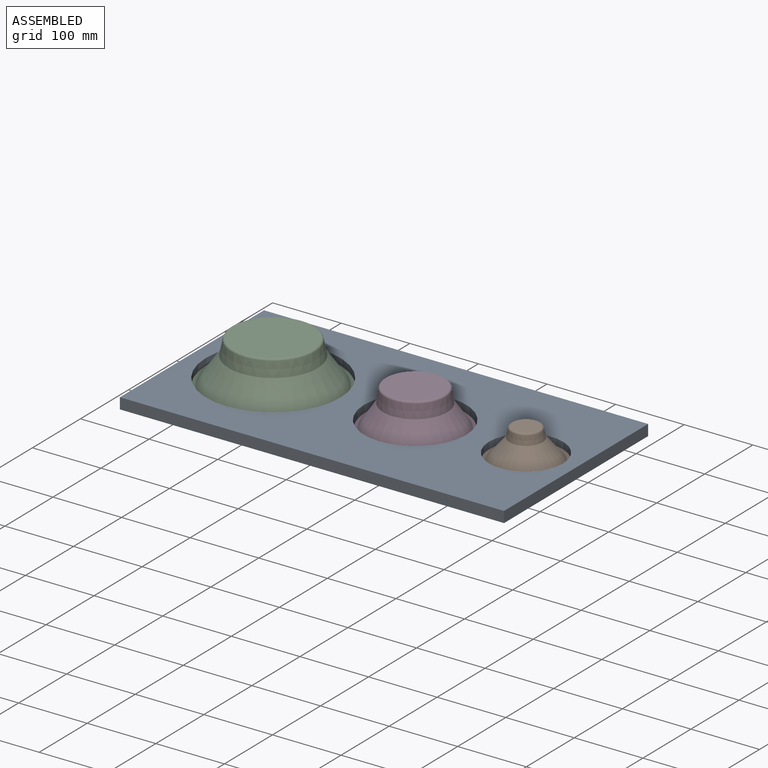
[diagram: assembled view]
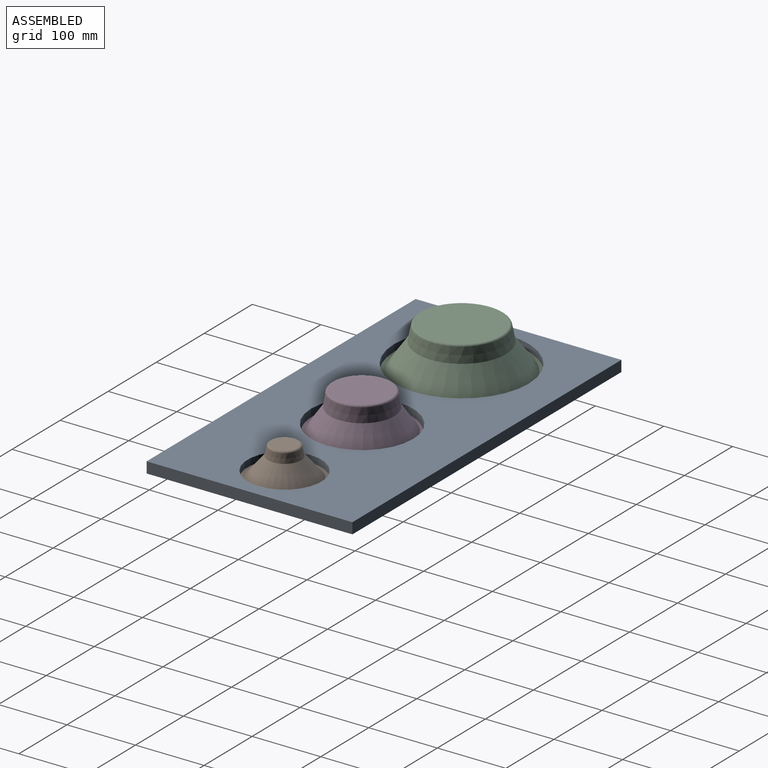
[diagram: assembled view, second angle]
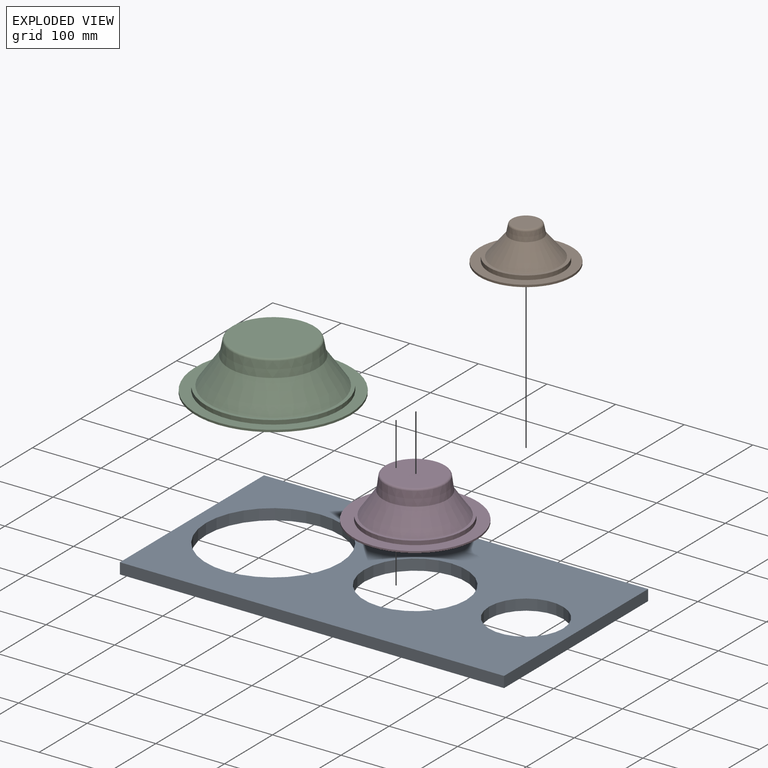
[diagram: exploded view]
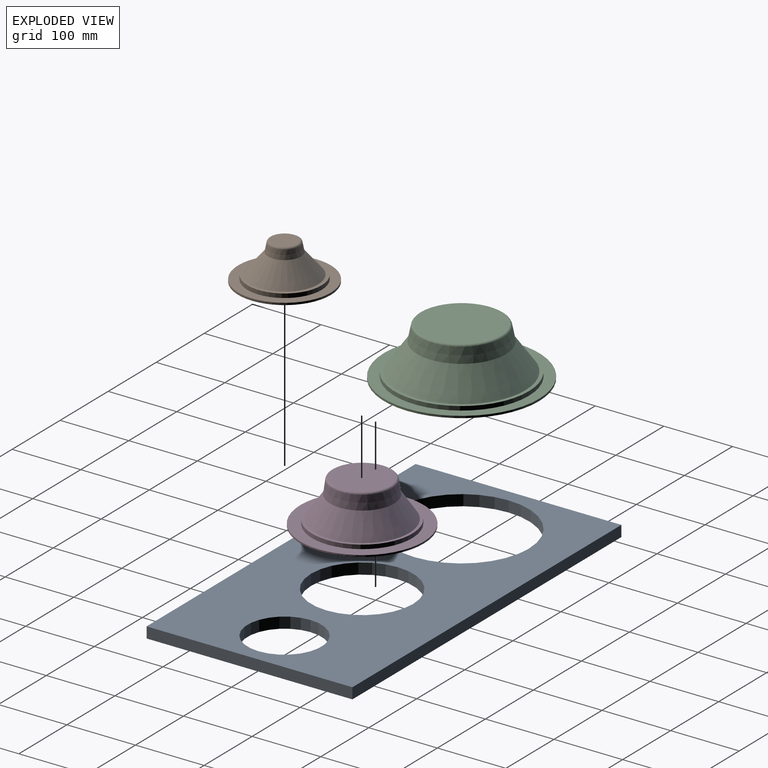
[diagram: exploded view, second angle]
ASSEMBLY  parts=4 mates=3
PART A: 9 faces, bbox 560x300x16 mm
  f0: plane 300x16mm, normal (1,0,0), area 4800mm2, adj f1,f5,f7,f8
  f1: plane 560x16mm, normal (0,1,0), area 8960mm2, adj f0,f2,f7,f8
  f2: plane 300x16mm, normal (-1,0,0), area 4800mm2, adj f1,f5,f7,f8
  f3: cylinder r=74.5mm len=149mm, axis (0,0,-1), area 7489.6mm2, adj f7,f8
  f4: cylinder r=54mm len=108mm, axis (0,0,-1), area 5428.7mm2, adj f7,f8
  f5: plane 560x16mm, normal (0,-1,0), area 8960mm2, adj f0,f2,f7,f8
  f6: cylinder r=98mm len=196mm, axis (0,0,-1), area 9852mm2, adj f7,f8
  f7: plane 560x300mm, normal (0,0,1), area 111230.6mm2, adj f0,f1,f2,f3,f4,f5,f6
  f8: plane 560x300mm, normal (0,0,-1), area 111230.6mm2, adj f0,f1,f2,f3,f4,f5,f6
PART B: 11 faces, bbox 135x54x135 mm
  f0: cylinder r=67.5mm len=135mm, axis (0,-1,0), area 1272.3mm2, adj f1,f7
  f1: plane 135x135mm, normal (0,-1,0), area 6459.9mm2, adj f0,f9
  f2: plane 37.08x37.08mm, normal (0,1,0), area 1079.9mm2, adj f8
  f3: cone r=24mm half-angle=11.3deg, axis (0,-1,0), area 1834.3mm2, adj f4,f8
  f4: cone r=49mm half-angle=39.8deg, axis (0,-1,0), area 8955.9mm2, adj f3,f5
  f5: plane 108x108mm, normal (0,1,0), area 1617.9mm2, adj f4,f6
  f6: cylinder r=54mm len=108mm, axis (0,-1,0), area 2035.8mm2, adj f5,f7
  f7: plane 135x135mm, normal (0,1,0), area 5153mm2, adj f0,f6
  f8: torus R=18.54mm, axis (0,1,0), area 525.4mm2, adj f2,f3
  f9: cylinder r=50mm len=100mm, axis (0,-1,0), area 314.2mm2, adj f1,f10
  f10: plane 100x100mm, normal (0,-1,0), area 7854mm2, adj f9
PART C: 11 faces, bbox 226x71.8x226 mm
  f0: cylinder r=113mm len=226mm, axis (0,-1,0), area 2130mm2, adj f1,f7
  f1: plane 226x226mm, normal (0,-1,0), area 11462.9mm2, adj f0,f9
  f2: plane 115.12x115.12mm, normal (0,1,0), area 10407.9mm2, adj f8
  f3: cone r=64.73mm half-angle=11.7deg, axis (0,-1,0), area 8207.9mm2, adj f4,f8
  f4: cone r=93mm half-angle=35.3deg, axis (0,-1,0), area 24271.5mm2, adj f3,f5
  f5: plane 196x196mm, normal (0,1,0), area 3000.2mm2, adj f4,f6
  f6: cylinder r=98mm len=196mm, axis (0,-1,0), area 3694.5mm2, adj f5,f7
  f7: plane 226x226mm, normal (0,1,0), area 9943.1mm2, adj f0,f6
  f8: torus R=57.56mm, axis (0,1,0), area 1527.6mm2, adj f2,f3
  f9: cylinder r=95.5mm len=191mm, axis (0,-1,0), area 600mm2, adj f1,f10
  f10: plane 191x191mm, normal (0,-1,0), area 28652.1mm2, adj f9
PART D: 11 faces, bbox 180x62.9x180 mm
  f0: cylinder r=72.5mm len=145mm, axis (0,1,0), area 455.5mm2, adj f1,f10
  f1: plane 145x145mm, normal (0,-1,0), area 16513mm2, adj f0
  f2: plane 82.06x82.06mm, normal (0,1,0), area 5288.1mm2, adj f3
  f3: torus R=41.03mm, axis (0,-1,0), area 1158.9mm2, adj f2,f4
  f4: cone r=45.32mm half-angle=7.8deg, axis (0,-1,0), area 5577.3mm2, adj f3,f5
  f5: cone r=57.82mm half-angle=34.5deg, axis (0,-1,0), area 14331.1mm2, adj f4,f6
  f6: plane 146.18x146.18mm, normal (0,1,0), area 1826.7mm2, adj f5,f7
  f7: cylinder r=73.09mm len=146.18mm, axis (0,-1,0), area 2718.3mm2, adj f6,f8
  f8: plane 180x180mm, normal (0,1,0), area 8663.1mm2, adj f7,f9
  f9: cylinder r=90mm len=180mm, axis (0,-1,0), area 1413.7mm2, adj f8,f10
  f10: plane 180x180mm, normal (0,-1,0), area 8933.9mm2, adj f0,f9
PLACE A at identity
PLACE B rot(axis=(1,0,0),90deg) t=(289.57,0,200.78)mm
PLACE C rot(axis=(1,0,0),90deg) t=(-78.93,0,-88.54)mm
PLACE D rot(axis=(1,0,0),90deg) t=(128.07,0,60.5)mm
MATE fastened C.f0 <-> A.f6  axis (0,0,1) through (-78.93,0,0)mm
MATE fastened B.f9 <-> A.f4  axis (0,0,1) through (289.57,0,0)mm
MATE fastened D.f4 <-> A.f3  axis (0,0,1) through (128.07,0,0)mm
